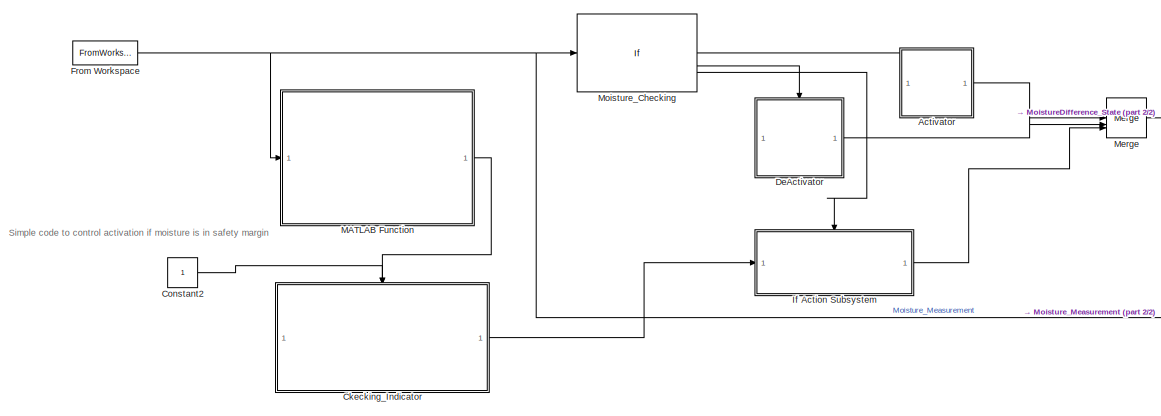
[diagram: root canvas - part 1/2, central region]
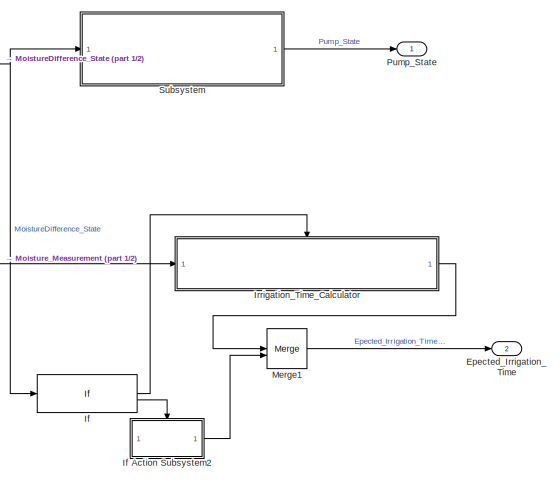
[diagram: root canvas - part 2/2, right side, full height]
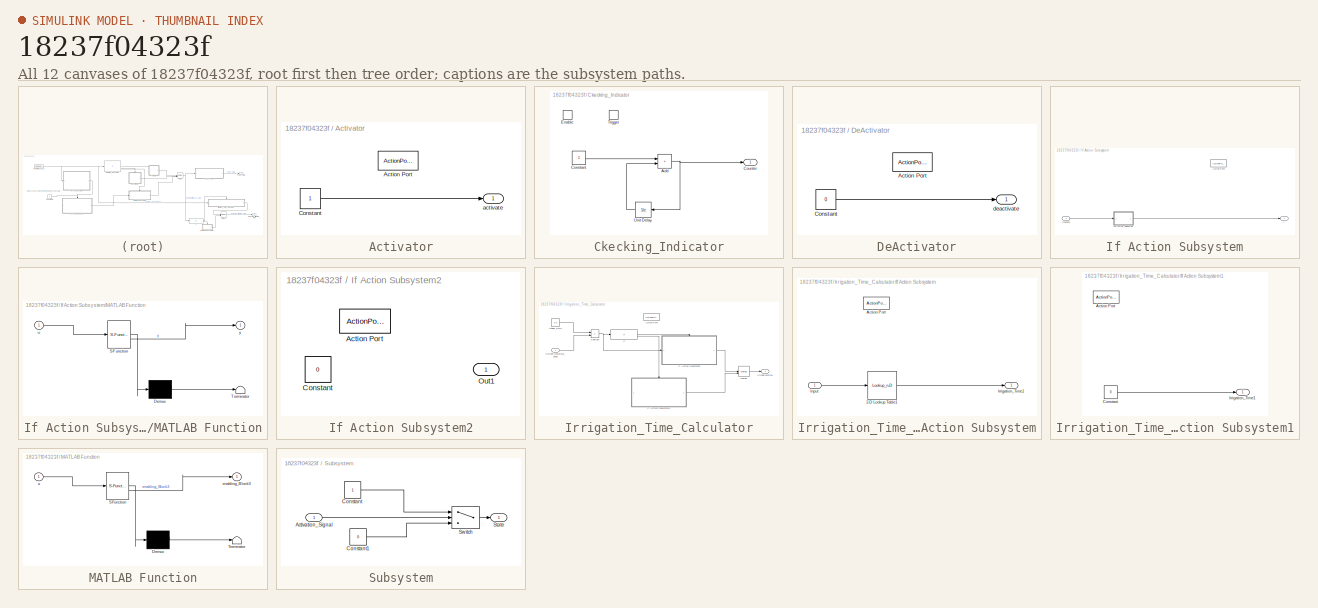
[diagram: thumbnail index - all 12 canvases of the model, root first then tree order]
MODEL slx_18237f04323f
KIND model
CONFIG AbsTol = auto
CONFIG EnableMultiTasking = off
CONFIG FixedStep = 1e-3
CONFIG MaxStep = 1e-3
CONFIG MinStep = auto
CONFIG RelTol = 1e-3
CONFIG SampleTimeConstraint = Unconstrained
CONFIG SolverName = FixedStepDiscrete
CONFIG StartTime = 0.0
CONFIG StopTime = 10000
BLOCK [SubSystem] Activator
  TreatAsAtomicUnit = on
BLOCK [ActionPort] Activator/Action Port
  ActionPortLabel = if(u1 < 0.3 )
BLOCK [Constant] Activator/Constant
BLOCK [Outport] Activator/activate
BLOCK [SubSystem] Ckecking_Indicator
  TreatAsAtomicUnit = on
BLOCK [Sum] Ckecking_Indicator/Add
  IconShape = rectangular
BLOCK [Constant] Ckecking_Indicator/Constant
BLOCK [Outport] Ckecking_Indicator/Counter
BLOCK [EnablePort] Ckecking_Indicator/Enable
  StatesWhenEnabling = reset
BLOCK [TriggerPort] Ckecking_Indicator/Trigger
  PortDimensions = 1
  StatesWhenEnabling = held
  TriggerType = falling
  VariantControl = (inherit)
BLOCK [UnitDelay] Ckecking_Indicator/Unit Delay
  HasFrameUpgradeWarning = on
  SampleTime = -1
BLOCK [Constant] Constant2
BLOCK [SubSystem] DeActivator
  TreatAsAtomicUnit = on
BLOCK [ActionPort] DeActivator/Action Port
  ActionPortLabel = elseif(u1>=0.6 )
BLOCK [Constant] DeActivator/Constant
  Value = 0
BLOCK [Outport] DeActivator/deactivate
BLOCK [Outport] Epected_Irrigation_Time
  Port = 2
BLOCK [FromWorkspace] From Workspace
  VariableName = myTimeSeries
BLOCK [If] If
BLOCK [SubSystem] If Action Subsystem
  TreatAsAtomicUnit = on
BLOCK [ActionPort] If Action Subsystem/Action Port
  ActionPortLabel = elseif( u1 < 0.6 & u1>0.3)
BLOCK [Inport] If Action Subsystem/Counter
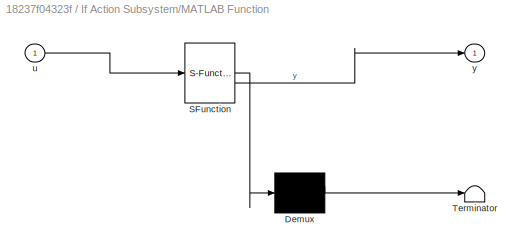
BLOCK [SubSystem] If Action Subsystem/MATLAB Function
  ErrorFcn = Stateflow.Translate.translate
  PermitHierarchicalResolution = ExplicitOnly
  SFBlockType = MATLAB Function
  TreatAsAtomicUnit = on
BLOCK [Demux] If Action Subsystem/MATLAB Function/ Demux 
  Outputs = 1
BLOCK [S-Function] If Action Subsystem/MATLAB Function/ SFunction 
  EnableBusSupport = on
  FunctionName = sf_sfun
  PortCounts = [1 2]
  SFcnIsStateOwnerBlock = off
  SFunctionDeploymentMode = off
  Tag = Stateflow S-Function 2
BLOCK [Terminator] If Action Subsystem/MATLAB Function/ Terminator 
BLOCK [Inport] If Action Subsystem/MATLAB Function/u
BLOCK [Outport] If Action Subsystem/MATLAB Function/y
BLOCK [Outport] If Action Subsystem/y
BLOCK [SubSystem] If Action Subsystem2
  TreatAsAtomicUnit = on
BLOCK [ActionPort] If Action Subsystem2/Action Port
  ActionPortLabel = else
BLOCK [Constant] If Action Subsystem2/Constant
  Value = 0
BLOCK [Outport] If Action Subsystem2/Out1
BLOCK [SubSystem] Irrigation_Time_Calculator
  TreatAsAtomicUnit = on
BLOCK [ActionPort] Irrigation_Time_Calculator/Action Port
  ActionPortLabel = if(u1 > 0)
BLOCK [Inport] Irrigation_Time_Calculator/Current_Moisture_Level
BLOCK [If] Irrigation_Time_Calculator/If
  IfExpression = u1 > 0 & u1 <=0.6
BLOCK [SubSystem] Irrigation_Time_Calculator/If Action Subsystem
  TreatAsAtomicUnit = on
BLOCK [Lookup_n-D] Irrigation_Time_Calculator/If Action Subsystem/2-D Lookup Table1
  BreakpointsForDimension1 = [0 0.1 0.2 0.3 0.4 0.5 0.6]
  BreakpointsForDimension2 = [1:3]
  InputPortMap = u0
  InternalRulePriority = Speed
  NumberOfTableDimensions = 1
  RndMeth = Simplest
  Table = [0 2.5 5 7.5 10 12.5 15]
BLOCK [ActionPort] Irrigation_Time_Calculator/If Action Subsystem/Action Port
  ActionPortLabel = if(u1 > 0 & u1 <=0.6)
BLOCK [Inport] Irrigation_Time_Calculator/If Action Subsystem/Input
BLOCK [Outport] Irrigation_Time_Calculator/If Action Subsystem/Irrigation_Time1
BLOCK [SubSystem] Irrigation_Time_Calculator/If Action Subsystem1
  TreatAsAtomicUnit = on
BLOCK [ActionPort] Irrigation_Time_Calculator/If Action Subsystem1/Action Port
  ActionPortLabel = else
BLOCK [Constant] Irrigation_Time_Calculator/If Action Subsystem1/Constant
  Value = 0
BLOCK [Outport] Irrigation_Time_Calculator/If Action Subsystem1/Irrigation_Time1
BLOCK [Outport] Irrigation_Time_Calculator/IrrigationTime
BLOCK [Merge] Irrigation_Time_Calculator/Merge
BLOCK [Sum] Irrigation_Time_Calculator/Subtract
  IconShape = rectangular
  Inputs = +-
BLOCK [Constant] Irrigation_Time_Calculator/Upper_Limit
  Value = 0.6
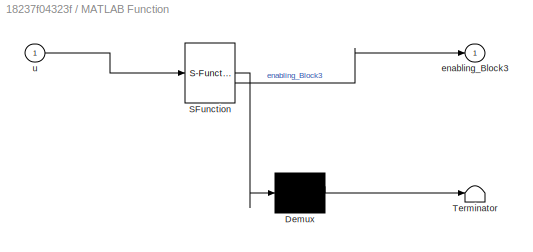
BLOCK [SubSystem] MATLAB Function
  ErrorFcn = Stateflow.Translate.translate
  PermitHierarchicalResolution = ExplicitOnly
  SFBlockType = MATLAB Function
  TreatAsAtomicUnit = on
BLOCK [Demux] MATLAB Function/ Demux 
  Outputs = 1
BLOCK [S-Function] MATLAB Function/ SFunction 
  EnableBusSupport = on
  FunctionName = sf_sfun
  PortCounts = [1 2]
  SFcnIsStateOwnerBlock = off
  SFunctionDeploymentMode = off
  Tag = Stateflow S-Function 1
BLOCK [Terminator] MATLAB Function/ Terminator 
BLOCK [Outport] MATLAB Function/enabling_Block3
BLOCK [Inport] MATLAB Function/u
BLOCK [Merge] Merge
  Inputs = 3
BLOCK [Merge] Merge1
BLOCK [If] Moisture_Checking
  ElseIfExpressions = u1>=0.6 , u1 < 0.6 & u1>0.3
  IfExpression = u1 < 0.3
  ShowElse = off
BLOCK [Outport] Pump_State
BLOCK [SubSystem] Subsystem
BLOCK [Inport] Subsystem/Activation_Signal
BLOCK [Constant] Subsystem/Constant
BLOCK [Constant] Subsystem/Constant1
  Value = 0
BLOCK [Outport] Subsystem/State
BLOCK [Switch] Subsystem/Switch
  Criteria = u2 > Threshold
  InputSameDT = off
  SaturateOnIntegerOverflow = off
ANNOTATION (root): Simple code to control activation if moisture is in safety margin
LINE Activator/Constant:1 -> Activator/activate:1
LINE Activator:1 -> Merge:1
NET Ckecking_Indicator/Add:1 -> Ckecking_Indicator/Counter:1, Ckecking_Indicator/Unit Delay:1
LINE Ckecking_Indicator/Constant:1 -> Ckecking_Indicator/Add:1
LINE Ckecking_Indicator/Unit Delay:1 -> Ckecking_Indicator/Add:2
LINE Ckecking_Indicator:1 -> If Action Subsystem:1
LINE Constant2:1 -> Ckecking_Indicator:enable
LINE DeActivator/Constant:1 -> DeActivator/deactivate:1
LINE DeActivator:1 -> Merge:2
NET From Workspace:1 -> Irrigation_Time_Calculator:1, MATLAB Function:1, Moisture_Checking:1
LINE If Action Subsystem/Counter:1 -> If Action Subsystem/MATLAB Function:1
LINE If Action Subsystem/MATLAB Function:1 -> If Action Subsystem/y:1
LINE If Action Subsystem2:1 -> Merge1:2
LINE If Action Subsystem:1 -> Merge:3
LINE If:1 -> Irrigation_Time_Calculator:ifaction
LINE If:2 -> If Action Subsystem2:ifaction
LINE Irrigation_Time_Calculator/Current_Moisture_Level:1 -> Irrigation_Time_Calculator/Subtract:2
LINE Irrigation_Time_Calculator/If Action Subsystem/2-D Lookup Table1:1 -> Irrigation_Time_Calculator/If Action Subsystem/Irrigation_Time1:1
LINE Irrigation_Time_Calculator/If Action Subsystem/Input:1 -> Irrigation_Time_Calculator/If Action Subsystem/2-D Lookup Table1:1
LINE Irrigation_Time_Calculator/If Action Subsystem1/Constant:1 -> Irrigation_Time_Calculator/If Action Subsystem1/Irrigation_Time1:1
LINE Irrigation_Time_Calculator/If Action Subsystem1:1 -> Irrigation_Time_Calculator/Merge:2
LINE Irrigation_Time_Calculator/If Action Subsystem:1 -> Irrigation_Time_Calculator/Merge:1
LINE Irrigation_Time_Calculator/If:1 -> Irrigation_Time_Calculator/If Action Subsystem:ifaction
LINE Irrigation_Time_Calculator/If:2 -> Irrigation_Time_Calculator/If Action Subsystem1:ifaction
LINE Irrigation_Time_Calculator/Merge:1 -> Irrigation_Time_Calculator/IrrigationTime:1
NET Irrigation_Time_Calculator/Subtract:1 -> Irrigation_Time_Calculator/If Action Subsystem:1, Irrigation_Time_Calculator/If:1
LINE Irrigation_Time_Calculator/Upper_Limit:1 -> Irrigation_Time_Calculator/Subtract:1
LINE Irrigation_Time_Calculator:1 -> Merge1:1
LINE MATLAB Function:1 -> Ckecking_Indicator:trigger
LINE Merge1:1 -> Epected_Irrigation_Time:1
NET Merge:1 -> If:1, Subsystem:1
LINE Moisture_Checking:1 -> Activator:ifaction
LINE Moisture_Checking:2 -> DeActivator:ifaction
LINE Moisture_Checking:3 -> If Action Subsystem:ifaction
LINE Subsystem/Activation_Signal:1 -> Subsystem/Switch:2
LINE Subsystem/Constant1:1 -> Subsystem/Switch:3
LINE Subsystem/Constant:1 -> Subsystem/Switch:1
LINE Subsystem/Switch:1 -> Subsystem/State:1
LINE Subsystem:1 -> Pump_State:1
note: NET lines group one-source signal fan-out (src -> all destinations, sorted); 1:1 wires keep LINE
CHART If Action
Subsystem/MATLAB Function states=1 transitions=1
  STATE_LABEL 'eML_blk_kernel()'
  STATE_LABEL 'SCRIPT:\nfunction y = fcn(u)\n\nif (u == 0 | rem(u,2) == 0)\n    y=0;\nelse\n    y=1;\nend\n\n'
CHART MATLAB Function states=1 transitions=1
  STATE_LABEL 'eML_blk_kernel()'
  STATE_LABEL 'SCRIPT:\nfunction enabling_Block3 = En_Disable_Function(u)\n\nif (u < 0.3 | u >= 0.6)\n    enabling_Block3=1;\nelse\n    enabling_Block3=0;\nend'
CHART  states=0 transitions=0
CHART  states=0 transitions=0
